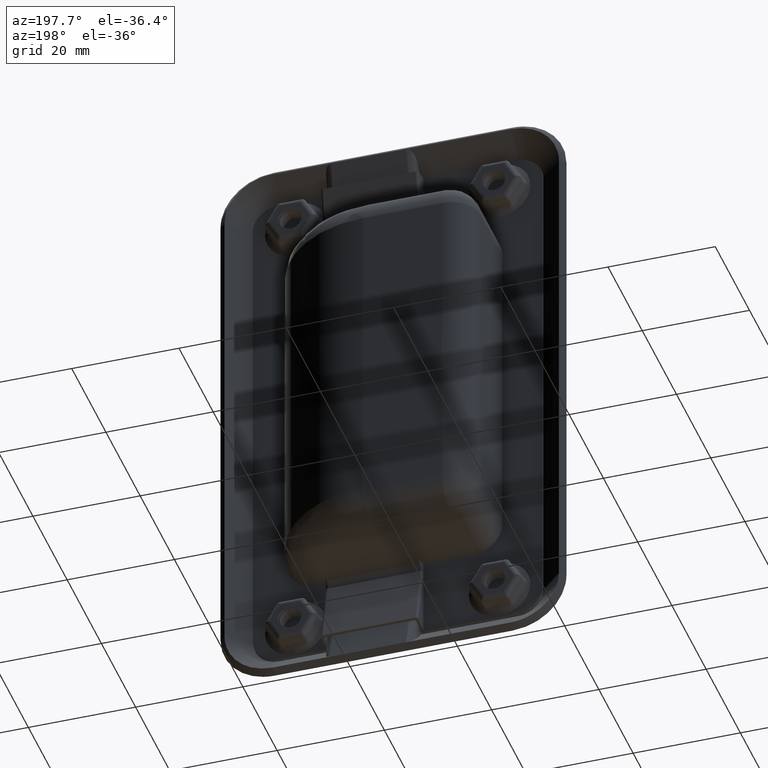
[diagram: clean part render]
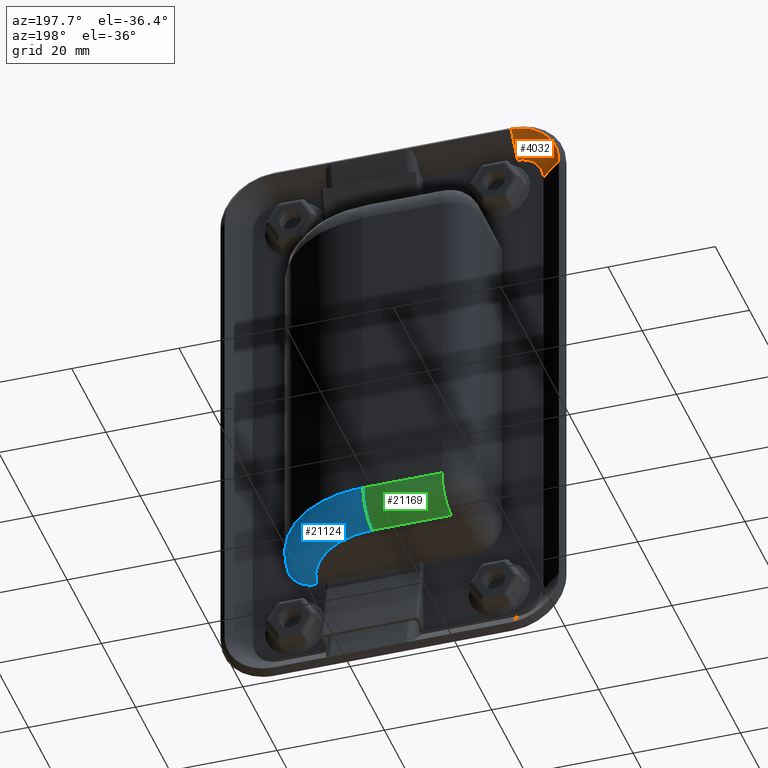
[diagram: same view with three faces highlighted in distinct colors, each labeled with its STEP entity id]
A machine part, auxiliary view with three faces highlighted in distinct colors.
Their STEP definitions:

[orange] entity #4032 — the highlighted face is a freeform B-spline surface patch.
#1822=CARTESIAN_POINT('',(10.0,0.000015000000019,54.430000000000000));
#1823=VERTEX_POINT('',#1822);
#1829=CARTESIAN_POINT('',(1.070000000000000,0.000015000000019,45.500000000000000));
#1830=VERTEX_POINT('',#1829);
#1831=CARTESIAN_POINT('',(10.0,0.000015000000019,54.430000000000000));
#1832=CARTESIAN_POINT('',(1.070000000000000,0.000015000000019,54.430000000000007));
#1833=CARTESIAN_POINT('',(1.070000000000000,0.000015000000019,45.500000000000000));
#1841=(BOUNDED_CURVE()B_SPLINE_CURVE(2,(#1831,#1832,#1833),.UNSPECIFIED.,.F.,.U.)CURVE()GEOMETRIC_REPRESENTATION_ITEM()QUASI_UNIFORM_CURVE()RATIONAL_B_SPLINE_CURVE((1.0,0.707106781186547,1.0))REPRESENTATION_ITEM(''));
#1842=EDGE_CURVE('',#1823,#1830,#1841,.T.);
#3940=CARTESIAN_POINT('',(10.0,-3.999985000000000,50.250000000000000));
#3941=VERTEX_POINT('',#3940);
#3947=CARTESIAN_POINT('',(10.0,-3.999985000000000,50.250000000000000));
#3948=CARTESIAN_POINT('',(10.0,0.000015000000019,54.430000000000000));
#3949=QUASI_UNIFORM_CURVE('',1,(#3947,#3948),.UNSPECIFIED.,.F.,.U.);
#3950=EDGE_CURVE('',#3941,#1823,#3949,.T.);
#3994=CARTESIAN_POINT('',(10.040539120657691,-4.099985000000001,50.145323113594593));
#3995=CARTESIAN_POINT('',(10.078862683034041,0.102515000000020,54.536768394447257));
#3996=CARTESIAN_POINT('',(5.059039965684428,-4.099985000000001,50.188795998119815));
#3997=CARTESIAN_POINT('',(0.388115017088822,0.102515000000020,54.621338268121576));
#3998=CARTESIAN_POINT('',(5.363164793931233,-4.099985000000001,45.216399009590830));
#3999=CARTESIAN_POINT('',(0.979743536496770,0.102515000000020,44.948297480262809));
#4007=(BOUNDED_SURFACE()B_SPLINE_SURFACE(1,2,((#3994,#3996,#3998),(#3995,#3997,#3999)),.UNSPECIFIED.,.F.,.F.,.U.)B_SPLINE_SURFACE_WITH_KNOTS((2,2),(3,3),(0.0,6.078426325962716),(0.0,15.717793395656541),.UNSPECIFIED.)GEOMETRIC_REPRESENTATION_ITEM()RATIONAL_B_SPLINE_SURFACE(((1.0,0.681998360062499,1.0),(1.0,0.681998360062499,1.0)))REPRESENTATION_ITEM('')SURFACE());
#4008=CARTESIAN_POINT('',(5.250000000000000,-3.999985000000000,45.500000000000000));
#4009=VERTEX_POINT('',#4008);
#4010=CARTESIAN_POINT('',(5.250000000000000,-3.999985000000000,45.500000000000000));
#4011=CARTESIAN_POINT('',(1.070000000000000,0.000015000000019,45.500000000000000));
#4012=QUASI_UNIFORM_CURVE('',1,(#4010,#4011),.UNSPECIFIED.,.F.,.U.);
#4013=EDGE_CURVE('',#4009,#1830,#4012,.T.);
#4014=ORIENTED_EDGE('',*,*,#4013,.T.);
#4015=ORIENTED_EDGE('',*,*,#1842,.F.);
#4016=ORIENTED_EDGE('',*,*,#3950,.F.);
#4017=CARTESIAN_POINT('',(10.0,-3.999985000000000,50.249999999999993));
#4018=CARTESIAN_POINT('',(5.250000000000001,-3.999985000000001,50.249999999999993));
#4019=CARTESIAN_POINT('',(5.250000000000000,-3.999985000000000,45.500000000000000));
#4027=(BOUNDED_CURVE()B_SPLINE_CURVE(2,(#4017,#4018,#4019),.UNSPECIFIED.,.F.,.U.)CURVE()GEOMETRIC_REPRESENTATION_ITEM()QUASI_UNIFORM_CURVE()RATIONAL_B_SPLINE_CURVE((1.0,0.707106781186548,1.0))REPRESENTATION_ITEM(''));
#4028=EDGE_CURVE('',#3941,#4009,#4027,.T.);
#4029=ORIENTED_EDGE('',*,*,#4028,.T.);
#4030=EDGE_LOOP('',(#4014,#4015,#4016,#4029));
#4031=FACE_OUTER_BOUND('',#4030,.T.);
#4032=ADVANCED_FACE('',(#4031),#4007,.F.);

[blue] entity #21124 — the highlighted face is a freeform B-spline surface patch.
#21022=CARTESIAN_POINT('',(47.093522934463223,-5.021925735663311,-35.236686475020889));
#21023=CARTESIAN_POINT('',(46.599864856382133,9.547967796725448,-35.236686475020889));
#21024=CARTESIAN_POINT('',(32.053327673641562,8.586847703113488,-35.236686475020910));
#21025=CARTESIAN_POINT('',(53.398813910629592,-4.808289457668764,-35.676454879895353));
#21026=CARTESIAN_POINT('',(52.684547796083400,16.272660505073098,-35.676454879895338));
#21027=CARTESIAN_POINT('',(31.637391768564971,14.882030947171476,-35.676454879895346));
#21028=CARTESIAN_POINT('',(52.959298063029834,-4.823181162136606,-29.367545698414531));
#21029=CARTESIAN_POINT('',(52.260409625501360,15.803909891226848,-29.367545698414528));
#21030=CARTESIAN_POINT('',(31.666384946287916,14.443219667919447,-29.367545698414538));
#21038=(BOUNDED_SURFACE()B_SPLINE_SURFACE(2,2,((#21022,#21025,#21028),(#21023,#21026,#21029),(#21024,#21027,#21030)),.UNSPECIFIED.,.F.,.F.,.U.)B_SPLINE_SURFACE_WITH_KNOTS((3,3),(3,3),(0.0,33.869302426636089),(0.0,10.023057368804009),.UNSPECIFIED.)GEOMETRIC_REPRESENTATION_ITEM()RATIONAL_B_SPLINE_SURFACE(((0.841340338105818,0.552108492603651,0.841340316914518),(0.586765495089343,0.385050137658879,0.586765480310160),(0.845585704775316,0.554894407989241,0.845585683477086)))REPRESENTATION_ITEM('')SURFACE());
#21039=CARTESIAN_POINT('',(47.345480894869212,-3.499985000000000,-35.250000000000000));
#21040=VERTEX_POINT('',#21039);
#21041=CARTESIAN_POINT('',(52.883822943139897,-3.499985000000000,-29.750000000000000));
#21042=VERTEX_POINT('',#21041);
#21043=CARTESIAN_POINT('',(47.345480894869212,-3.499985000000000,-35.250000000000000));
#21044=CARTESIAN_POINT('',(47.709923726992493,-3.499985000000002,-35.250000000000000));
#21045=CARTESIAN_POINT('',(48.068394131308750,-3.499985000000000,-35.214805395901159));
#21046=CARTESIAN_POINT('',(48.597466698763803,-3.499985000000001,-35.111140310490917));
#21047=CARTESIAN_POINT('',(48.772375026441502,-3.499984999999999,-35.068045398550730));
#21048=CARTESIAN_POINT('',(49.032511067026803,-3.499985000000001,-34.990282895646097));
#21049=CARTESIAN_POINT('',(49.118926053052562,-3.499985000000001,-34.962145016867673));
#21050=CARTESIAN_POINT('',(49.290682640504990,-3.499985000000001,-34.901497526578787));
#21051=CARTESIAN_POINT('',(49.375461684305719,-3.499985000000000,-34.869190769328071));
#21052=CARTESIAN_POINT('',(49.793968830561731,-3.499985000000000,-34.697937070213683));
#21053=CARTESIAN_POINT('',(50.111683932035881,-3.499984999999999,-34.530103180926119));
#21054=CARTESIAN_POINT('',(50.487625967807404,-3.499985000000000,-34.282063368446281));
#21055=CARTESIAN_POINT('',(50.561744873742292,-3.499984999999999,-34.230526059569129));
#21056=CARTESIAN_POINT('',(50.707809218870047,-3.499985000000002,-34.123530576539238));
#21057=CARTESIAN_POINT('',(50.779865224172418,-3.499985000000001,-34.067982242688309));
#21058=CARTESIAN_POINT('',(50.991966698892000,-3.499985000000001,-33.895911784069497));
#21059=CARTESIAN_POINT('',(51.126549508874220,-3.499985000000002,-33.775157257274273));
#21060=CARTESIAN_POINT('',(51.510494585853927,-3.499985000000000,-33.395347945973143));
#21061=CARTESIAN_POINT('',(51.740240203713313,-3.499985000000001,-33.118912849768662));
#21062=CARTESIAN_POINT('',(51.993918144557597,-3.499985000000001,-32.743684430679409));
#21063=CARTESIAN_POINT('',(52.043076592809527,-3.499985000000000,-32.666951294536410));
#21064=CARTESIAN_POINT('',(52.137376305576922,-3.499985000000000,-32.511345040604930));
#21065=CARTESIAN_POINT('',(52.182405653605180,-3.499985000000000,-32.432680844363389));
#21066=CARTESIAN_POINT('',(52.311255219579159,-3.499985000000002,-32.194155013166522));
#21067=CARTESIAN_POINT('',(52.466448541306029,-3.499985000000000,-31.869377376197232));
#21068=CARTESIAN_POINT('',(52.588985342766243,-3.499984999999999,-31.531338991547660));
#21069=CARTESIAN_POINT('',(52.668493410042522,-3.499985000000000,-31.272777187165179));
#21070=CARTESIAN_POINT('',(52.692926666324809,-3.499984999999999,-31.185749589875002));
#21071=CARTESIAN_POINT('',(52.737583219583982,-3.499985000000000,-31.009984868142379));
#21072=CARTESIAN_POINT('',(52.757844876791992,-3.499985000000000,-30.921038802842610));
#21073=CARTESIAN_POINT('',(52.847757218887573,-3.499985000000001,-30.475139732690671));
#21074=CARTESIAN_POINT('',(52.883822943139911,-3.499985000000001,-30.114527363514199));
#21075=CARTESIAN_POINT('',(52.883822943139897,-3.499985000000000,-29.750000000000000));
#21076=B_SPLINE_CURVE_WITH_KNOTS('',3,(#21043,#21044,#21045,#21046,#21047,#21048,#21049,#21050,#21051,#21052,#21053,#21054,#21055,#21056,#21057,#21058,#21059,#21060,#21061,#21062,#21063,#21064,#21065,#21066,#21067,#21068,#21069,#21070,#21071,#21072,#21073,#21074,#21075),.UNSPECIFIED.,.F.,.U.,(4,2,2,2,2,2,2,2,2,2,2,2,1,2,2,2,4),(0.0,0.125000000000004,0.187500000000005,0.218750000000006,0.250000000000007,0.375000000000006,0.406250000000004,0.437500000000002,0.499999999999998,0.624999999999992,0.656249999999992,0.687499999999992,0.749999999999994,0.812499999999995,0.843749999999996,0.874999999999996,1.0),.UNSPECIFIED.);
#21077=EDGE_CURVE('',#21040,#21042,#21076,.T.);
#21078=ORIENTED_EDGE('',*,*,#21077,.F.);
#21079=CARTESIAN_POINT('',(32.984074000000000,9.000017000000002,-35.250000000000000));
#21080=VERTEX_POINT('',#21079);
#21081=CARTESIAN_POINT('',(32.984074000000000,9.000017000000002,-35.250000000000000));
#21082=CARTESIAN_POINT('',(45.604705831325255,9.000017000000002,-35.250000000000000));
#21083=CARTESIAN_POINT('',(47.345480894869183,-3.499985000000001,-35.250000000000000));
#21091=(BOUNDED_CURVE()B_SPLINE_CURVE(2,(#21081,#21082,#21083),.UNSPECIFIED.,.F.,.U.)CURVE()GEOMETRIC_REPRESENTATION_ITEM()QUASI_UNIFORM_CURVE()RATIONAL_B_SPLINE_CURVE((1.0,0.754297983741082,1.0))REPRESENTATION_ITEM(''));
#21092=EDGE_CURVE('',#21080,#21040,#21091,.T.);
#21093=ORIENTED_EDGE('',*,*,#21092,.F.);
#21094=CARTESIAN_POINT('',(32.984074000000000,14.500017000000019,-29.750000000000000));
#21095=VERTEX_POINT('',#21094);
#21096=CARTESIAN_POINT('',(32.984074000000000,9.000017000000002,-35.250000000000000));
#21097=CARTESIAN_POINT('',(32.984073999999993,14.500017000000000,-35.249999999999993));
#21098=CARTESIAN_POINT('',(32.984074000000000,14.500017000000000,-29.750000000000000));
#21106=(BOUNDED_CURVE()B_SPLINE_CURVE(2,(#21096,#21097,#21098),.UNSPECIFIED.,.F.,.U.)CURVE()GEOMETRIC_REPRESENTATION_ITEM()QUASI_UNIFORM_CURVE()RATIONAL_B_SPLINE_CURVE((1.0,0.707106781186548,1.0))REPRESENTATION_ITEM(''));
#21107=EDGE_CURVE('',#21080,#21095,#21106,.T.);
#21108=ORIENTED_EDGE('',*,*,#21107,.T.);
#21109=CARTESIAN_POINT('',(52.883822943139869,-3.499985000000005,-29.750000000000000));
#21110=CARTESIAN_POINT('',(51.074756502007389,14.500016999999996,-29.750000000000004));
#21111=CARTESIAN_POINT('',(32.984074000000000,14.500017000000000,-29.750000000000000));
#21119=(BOUNDED_CURVE()B_SPLINE_CURVE(2,(#21109,#21110,#21111),.UNSPECIFIED.,.F.,.U.)CURVE()GEOMETRIC_REPRESENTATION_ITEM()QUASI_UNIFORM_CURVE()RATIONAL_B_SPLINE_CURVE((1.0,0.741619814999572,1.0))REPRESENTATION_ITEM(''));
#21120=EDGE_CURVE('',#21042,#21095,#21119,.T.);
#21121=ORIENTED_EDGE('',*,*,#21120,.F.);
#21122=EDGE_LOOP('',(#21078,#21093,#21108,#21121));
#21123=FACE_OUTER_BOUND('',#21122,.T.);
#21124=ADVANCED_FACE('',(#21123),#21038,.T.);

[green] entity #21169 — the highlighted face is a freeform B-spline surface patch.
#21079=CARTESIAN_POINT('',(32.984074000000000,9.000017000000002,-35.250000000000000));
#21080=VERTEX_POINT('',#21079);
#21094=CARTESIAN_POINT('',(32.984074000000000,14.500017000000019,-29.750000000000000));
#21095=VERTEX_POINT('',#21094);
#21096=CARTESIAN_POINT('',(32.984074000000000,9.000017000000002,-35.250000000000000));
#21097=CARTESIAN_POINT('',(32.984073999999993,14.500017000000000,-35.249999999999993));
#21098=CARTESIAN_POINT('',(32.984074000000000,14.500017000000000,-29.750000000000000));
#21106=(BOUNDED_CURVE()B_SPLINE_CURVE(2,(#21096,#21097,#21098),.UNSPECIFIED.,.F.,.U.)CURVE()GEOMETRIC_REPRESENTATION_ITEM()QUASI_UNIFORM_CURVE()RATIONAL_B_SPLINE_CURVE((1.0,0.707106781186548,1.0))REPRESENTATION_ITEM(''));
#21107=EDGE_CURVE('',#21080,#21095,#21106,.T.);
#21125=CARTESIAN_POINT('',(17.881648150000000,14.494782218700220,-29.510093369490651));
#21126=CARTESIAN_POINT('',(33.361634646250003,14.494782218700220,-29.510093369490651));
#21127=CARTESIAN_POINT('',(17.881648150000004,14.763656700147918,-35.668331454524697));
#21128=CARTESIAN_POINT('',(33.361634646250003,14.763656700147918,-35.668331454524697));
#21129=CARTESIAN_POINT('',(17.881648149999997,8.614697493760623,-35.236486022775544));
#21130=CARTESIAN_POINT('',(33.361634646249989,8.614697493760623,-35.236486022775544));
#21138=(BOUNDED_SURFACE()B_SPLINE_SURFACE(1,2,((#21125,#21127,#21129),(#21126,#21128,#21130)),.UNSPECIFIED.,.F.,.F.,.U.)B_SPLINE_SURFACE_WITH_KNOTS((2,2),(3,3),(0.0,15.479986496250010),(0.0,9.854583969130921),.UNSPECIFIED.)GEOMETRIC_REPRESENTATION_ITEM()RATIONAL_B_SPLINE_SURFACE(((1.0,0.664513898535122,0.996233561259061),(1.0,0.664513898535122,0.996233561259061)))REPRESENTATION_ITEM('')SURFACE());
#21139=CARTESIAN_POINT('',(18.250000000000000,9.000017000000002,-35.250000000000000));
#21140=VERTEX_POINT('',#21139);
#21141=CARTESIAN_POINT('',(18.250000000000000,14.500017000000019,-29.750000000000000));
#21142=VERTEX_POINT('',#21141);
#21143=CARTESIAN_POINT('',(18.250000000000000,9.000017000000002,-35.250000000000000));
#21144=CARTESIAN_POINT('',(18.249999999999996,14.500017000000000,-35.249999999999993));
#21145=CARTESIAN_POINT('',(18.250000000000000,14.500017000000000,-29.750000000000000));
#21153=(BOUNDED_CURVE()B_SPLINE_CURVE(2,(#21143,#21144,#21145),.UNSPECIFIED.,.F.,.U.)CURVE()GEOMETRIC_REPRESENTATION_ITEM()QUASI_UNIFORM_CURVE()RATIONAL_B_SPLINE_CURVE((1.0,0.707106781186548,1.0))REPRESENTATION_ITEM(''));
#21154=EDGE_CURVE('',#21140,#21142,#21153,.T.);
#21155=ORIENTED_EDGE('',*,*,#21154,.T.);
#21156=CARTESIAN_POINT('',(32.984074000000000,14.500017000000019,-29.750000000000000));
#21157=CARTESIAN_POINT('',(18.250000000000000,14.500017000000019,-29.750000000000000));
#21158=QUASI_UNIFORM_CURVE('',1,(#21156,#21157),.UNSPECIFIED.,.F.,.U.);
#21159=EDGE_CURVE('',#21095,#21142,#21158,.T.);
#21160=ORIENTED_EDGE('',*,*,#21159,.F.);
#21161=ORIENTED_EDGE('',*,*,#21107,.F.);
#21162=CARTESIAN_POINT('',(18.250000000000000,9.000017000000002,-35.250000000000000));
#21163=CARTESIAN_POINT('',(32.984074000000000,9.000017000000002,-35.250000000000000));
#21164=QUASI_UNIFORM_CURVE('',1,(#21162,#21163),.UNSPECIFIED.,.F.,.U.);
#21165=EDGE_CURVE('',#21140,#21080,#21164,.T.);
#21166=ORIENTED_EDGE('',*,*,#21165,.F.);
#21167=EDGE_LOOP('',(#21155,#21160,#21161,#21166));
#21168=FACE_OUTER_BOUND('',#21167,.T.);
#21169=ADVANCED_FACE('',(#21168),#21138,.T.);